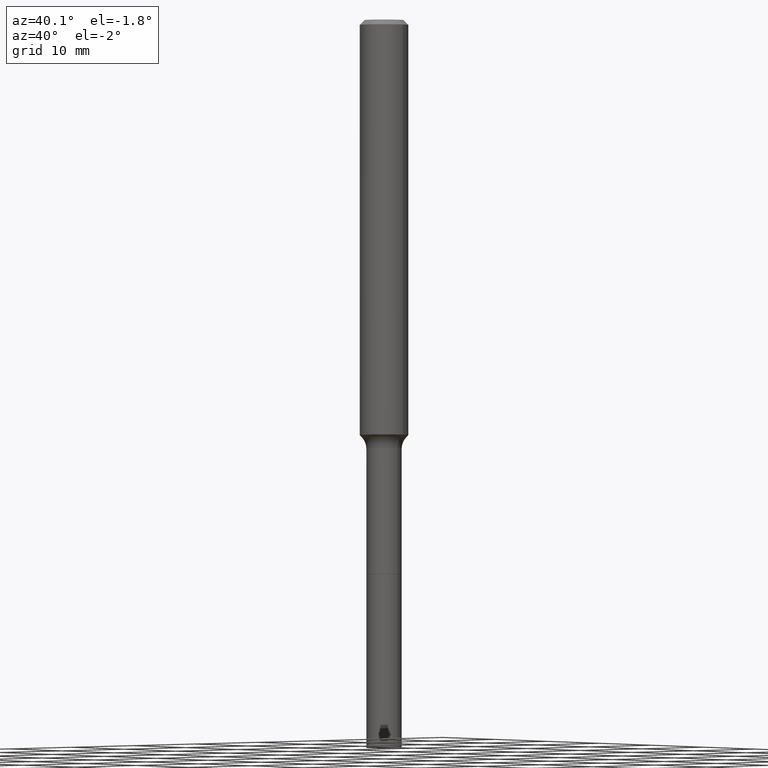
[diagram: clean part render]
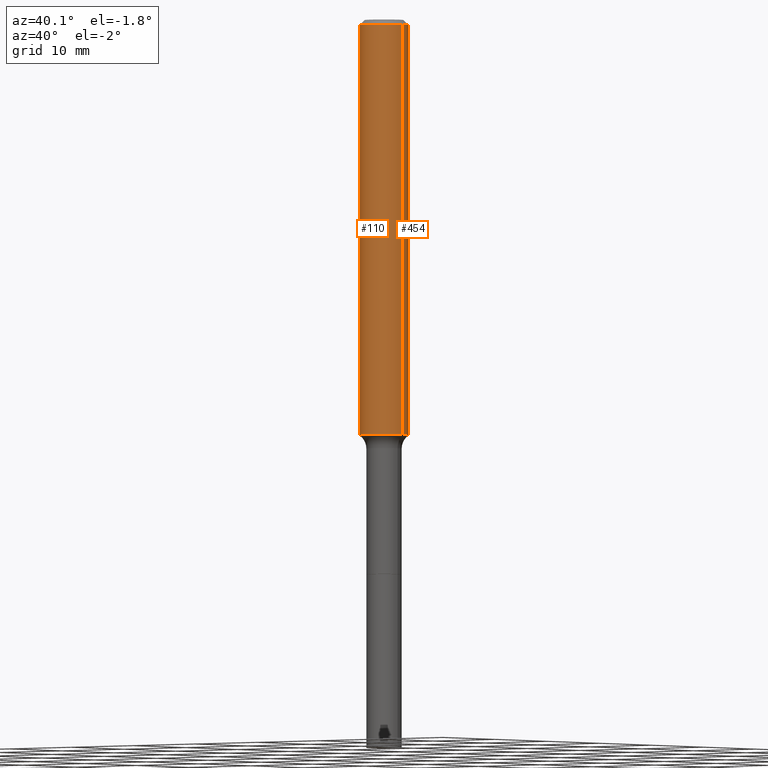
[diagram: same view with one multi-face feature highlighted, each face labeled with its STEP entity id]
A machine part, auxiliary view. The highlighted faces form ONE feature: a constant-radius fillet chain: 2 tangent blend faces with common blend radius 2.9997 mm. The faces share edges in the B-rep.
Their STEP definitions:
[1] entity #454 (Cylinder):
#19 = DIRECTION ( 'NONE',  ( -2.445468806185136597E-29, 3.491481338843145583E-15, 1.000000000000000000 ) ) ;
#30 = EDGE_CURVE ( 'NONE', #244, #422, #174, .T. ) ;
#59 = CYLINDRICAL_SURFACE ( 'NONE', #275, 0.1181000000000001215 ) ;
#70 = EDGE_CURVE ( 'NONE', #305, #461, #284, .T. ) ;
#77 = EDGE_LOOP ( 'NONE', ( #282, #511, #112, #79 ) ) ;
#79 = ORIENTED_EDGE ( 'NONE', *, *, #504, .F. ) ;
#90 = CARTESIAN_POINT ( 'NONE',  ( -0.1181000000000001215, 8.391509709326791832E-16, -5.809262341591049389E-30 ) ) ;
#99 = DIRECTION ( 'NONE',  ( -2.445468806185136597E-29, 3.491481338843145583E-15, 1.000000000000000000 ) ) ;
#112 = ORIENTED_EDGE ( 'NONE', *, *, #70, .F. ) ;
#121 = CARTESIAN_POINT ( 'NONE',  ( 0.1180999999999999966, -9.071566814582237199E-16, -0.02362000000000014088 ) ) ;
#159 = CARTESIAN_POINT ( 'NONE',  ( 4.940606325934994993E-29, -7.053876437083654599E-15, -2.020310507923510634 ) ) ;
#169 = DIRECTION ( 'NONE',  ( 1.000000000000000000, -6.982962677686266711E-15, 0.000000000000000000 ) ) ;
#174 = CIRCLE ( 'NONE', #321, 0.1181000000000002326 ) ;
#244 = VERTEX_POINT ( 'NONE', #246 ) ;
#246 = CARTESIAN_POINT ( 'NONE',  ( 0.1181000000000002326, -7.878564329318403650E-15, -2.020310507923510634 ) ) ;
#275 = AXIS2_PLACEMENT_3D ( 'NONE', #458, #99, #374 ) ;
#282 = ORIENTED_EDGE ( 'NONE', *, *, #30, .T. ) ;
#284 = CIRCLE ( 'NONE', #459, 0.1180999999999999966 ) ;
#305 = VERTEX_POINT ( 'NONE', #121 ) ;
#321 = AXIS2_PLACEMENT_3D ( 'NONE', #159, #355, #434 ) ;
#339 = DIRECTION ( 'NONE',  ( -2.445468806185136877E-29, 3.491481338843145188E-15, 1.000000000000000000 ) ) ;
#355 = DIRECTION ( 'NONE',  ( -2.445468806185136597E-29, 3.491481338843145583E-15, 1.000000000000000000 ) ) ;
#373 = LINE ( 'NONE', #90, #431 ) ;
#374 = DIRECTION ( 'NONE',  ( 1.000000000000000000, -6.982962677686266711E-15, 4.876176775795935793E-29 ) ) ;
#394 = CARTESIAN_POINT ( 'NONE',  ( 5.776197320209327532E-31, -8.246878922347559293E-17, -0.02362000000000014088 ) ) ;
#409 = CARTESIAN_POINT ( 'NONE',  ( -0.1181000000000002326, -6.214725466150974824E-15, -2.020310507923510634 ) ) ;
#416 = CARTESIAN_POINT ( 'NONE',  ( -0.1180999999999999966, -2.729021642220884070E-15, -0.02362000000000014088 ) ) ;
#417 = CARTESIAN_POINT ( 'NONE',  ( 0.1181000000000001215, -8.246878922347489529E-16, 5.758764772215006046E-30 ) ) ;
#419 = LINE ( 'NONE', #417, #516 ) ;
#422 = VERTEX_POINT ( 'NONE', #409 ) ;
#423 = EDGE_CURVE ( 'NONE', #422, #461, #373, .T. ) ;
#431 = VECTOR ( 'NONE', #450, 39.37007874015748143 ) ;
#434 = DIRECTION ( 'NONE',  ( 1.000000000000000000, -6.982962677686266711E-15, 0.000000000000000000 ) ) ;
#450 = DIRECTION ( 'NONE',  ( -2.445468806185136877E-29, 3.491481338843145188E-15, 1.000000000000000000 ) ) ;
#451 = FACE_OUTER_BOUND ( 'NONE', #77, .T. ) ;
#454 = ADVANCED_FACE ( 'NONE', ( #451 ), #59, .T. ) ;
#458 = CARTESIAN_POINT ( 'NONE',  ( 0.000000000000000000, 0.000000000000000000, 0.000000000000000000 ) ) ;
#459 = AXIS2_PLACEMENT_3D ( 'NONE', #394, #19, #169 ) ;
#461 = VERTEX_POINT ( 'NONE', #416 ) ;
#504 = EDGE_CURVE ( 'NONE', #244, #305, #419, .T. ) ;
#511 = ORIENTED_EDGE ( 'NONE', *, *, #423, .T. ) ;
#516 = VECTOR ( 'NONE', #339, 39.37007874015748143 ) ;
[2] entity #110 (Cylinder):
#17 = ORIENTED_EDGE ( 'NONE', *, *, #423, .F. ) ;
#48 = CARTESIAN_POINT ( 'NONE',  ( 4.940606325934994993E-29, -7.053876437083654599E-15, -2.020310507923510634 ) ) ;
#63 = AXIS2_PLACEMENT_3D ( 'NONE', #444, #132, #478 ) ;
#90 = CARTESIAN_POINT ( 'NONE',  ( -0.1181000000000001215, 8.391509709326791832E-16, -5.809262341591049389E-30 ) ) ;
#110 = ADVANCED_FACE ( 'NONE', ( #147 ), #480, .T. ) ;
#121 = CARTESIAN_POINT ( 'NONE',  ( 0.1180999999999999966, -9.071566814582237199E-16, -0.02362000000000014088 ) ) ;
#132 = DIRECTION ( 'NONE',  ( -2.445468806185136597E-29, 3.491481338843145583E-15, 1.000000000000000000 ) ) ;
#147 = FACE_OUTER_BOUND ( 'NONE', #308, .T. ) ;
#173 = CIRCLE ( 'NONE', #430, 0.1181000000000002326 ) ;
#197 = ORIENTED_EDGE ( 'NONE', *, *, #504, .T. ) ;
#198 = DIRECTION ( 'NONE',  ( 1.000000000000000000, -6.982962677686266711E-15, 0.000000000000000000 ) ) ;
#228 = ORIENTED_EDGE ( 'NONE', *, *, #243, .T. ) ;
#235 = EDGE_CURVE ( 'NONE', #461, #305, #414, .T. ) ;
#238 = ORIENTED_EDGE ( 'NONE', *, *, #235, .F. ) ;
#243 = EDGE_CURVE ( 'NONE', #422, #244, #173, .T. ) ;
#244 = VERTEX_POINT ( 'NONE', #246 ) ;
#246 = CARTESIAN_POINT ( 'NONE',  ( 0.1181000000000002326, -7.878564329318403650E-15, -2.020310507923510634 ) ) ;
#251 = CARTESIAN_POINT ( 'NONE',  ( 5.776197320209327532E-31, -8.246878922347559293E-17, -0.02362000000000014088 ) ) ;
#305 = VERTEX_POINT ( 'NONE', #121 ) ;
#308 = EDGE_LOOP ( 'NONE', ( #17, #228, #197, #238 ) ) ;
#328 = DIRECTION ( 'NONE',  ( -2.445468806185136597E-29, 3.491481338843145583E-15, 1.000000000000000000 ) ) ;
#339 = DIRECTION ( 'NONE',  ( -2.445468806185136877E-29, 3.491481338843145188E-15, 1.000000000000000000 ) ) ;
#361 = AXIS2_PLACEMENT_3D ( 'NONE', #251, #407, #512 ) ;
#373 = LINE ( 'NONE', #90, #431 ) ;
#407 = DIRECTION ( 'NONE',  ( -2.445468806185136597E-29, 3.491481338843145583E-15, 1.000000000000000000 ) ) ;
#409 = CARTESIAN_POINT ( 'NONE',  ( -0.1181000000000002326, -6.214725466150974824E-15, -2.020310507923510634 ) ) ;
#414 = CIRCLE ( 'NONE', #361, 0.1180999999999999966 ) ;
#416 = CARTESIAN_POINT ( 'NONE',  ( -0.1180999999999999966, -2.729021642220884070E-15, -0.02362000000000014088 ) ) ;
#417 = CARTESIAN_POINT ( 'NONE',  ( 0.1181000000000001215, -8.246878922347489529E-16, 5.758764772215006046E-30 ) ) ;
#419 = LINE ( 'NONE', #417, #516 ) ;
#422 = VERTEX_POINT ( 'NONE', #409 ) ;
#423 = EDGE_CURVE ( 'NONE', #422, #461, #373, .T. ) ;
#430 = AXIS2_PLACEMENT_3D ( 'NONE', #48, #328, #198 ) ;
#431 = VECTOR ( 'NONE', #450, 39.37007874015748143 ) ;
#444 = CARTESIAN_POINT ( 'NONE',  ( 0.000000000000000000, 0.000000000000000000, 0.000000000000000000 ) ) ;
#450 = DIRECTION ( 'NONE',  ( -2.445468806185136877E-29, 3.491481338843145188E-15, 1.000000000000000000 ) ) ;
#461 = VERTEX_POINT ( 'NONE', #416 ) ;
#478 = DIRECTION ( 'NONE',  ( 1.000000000000000000, -6.982962677686266711E-15, 4.876176775795935793E-29 ) ) ;
#480 = CYLINDRICAL_SURFACE ( 'NONE', #63, 0.1181000000000001215 ) ;
#504 = EDGE_CURVE ( 'NONE', #244, #305, #419, .T. ) ;
#512 = DIRECTION ( 'NONE',  ( 1.000000000000000000, -6.982962677686266711E-15, 0.000000000000000000 ) ) ;
#516 = VECTOR ( 'NONE', #339, 39.37007874015748143 ) ;